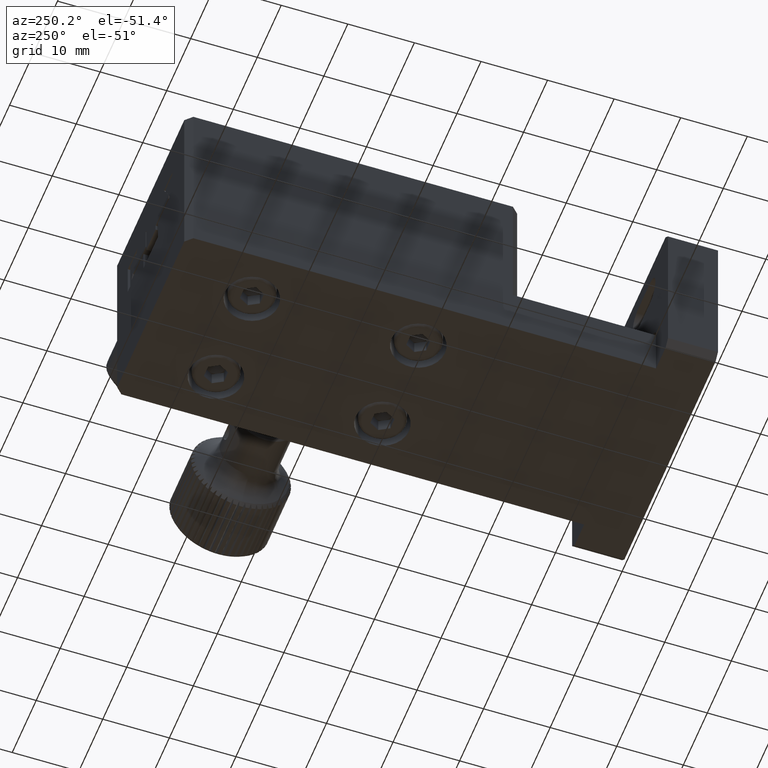
[diagram: clean part render]
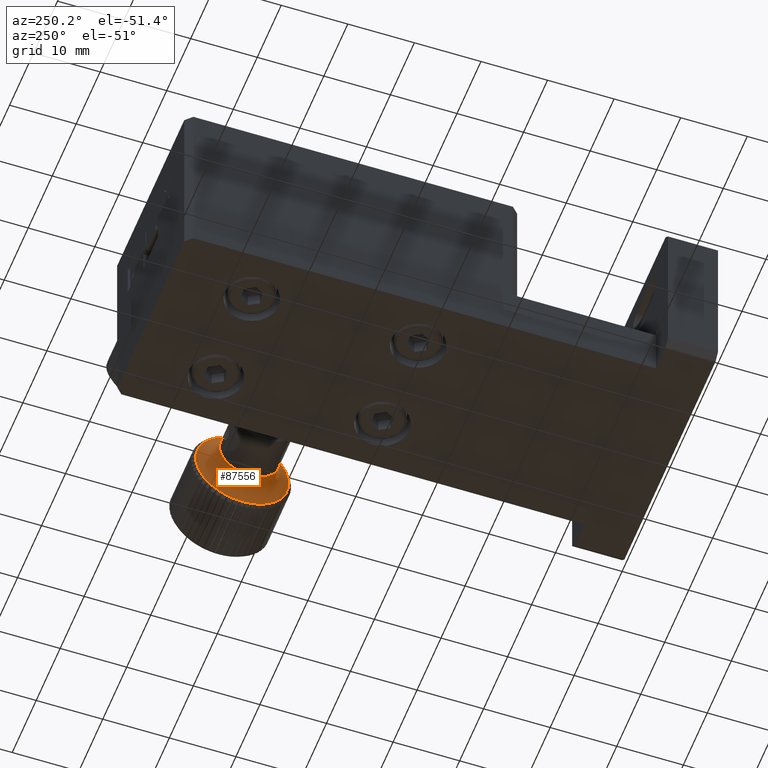
[diagram: same view with one face highlighted and labeled with its STEP entity id]
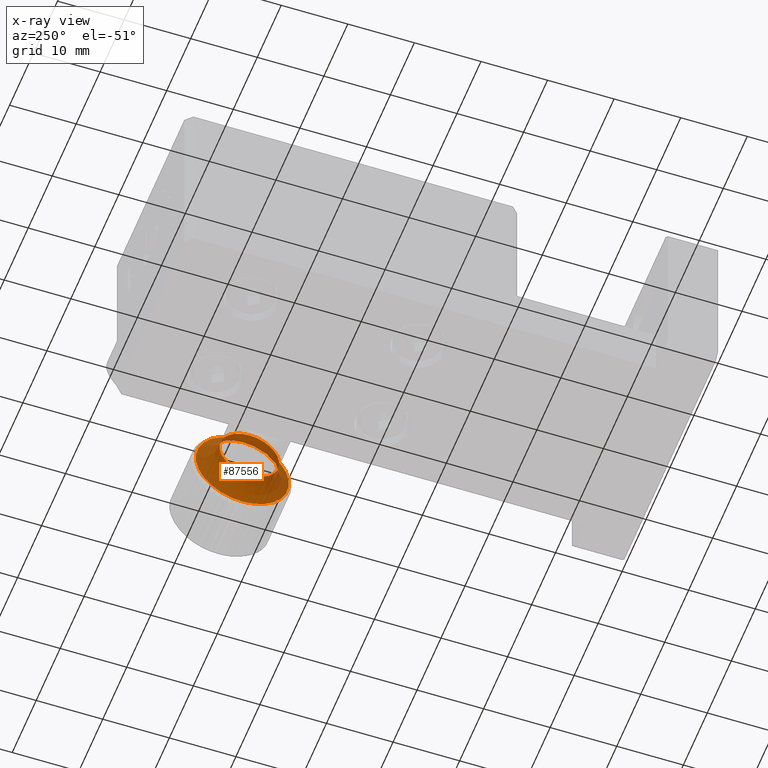
[diagram: x-ray of the same camera — body ghosted, the highlighted face saturated]
A machine part, auxiliary view. The second image highlights one B-rep face of the part: STEP entity #87556.
The next image is the same camera in x-ray: the body ghosted, the highlighted face saturated — about 6% of this face is hidden behind the body in this view.
In plain terms, the highlighted face is a freeform B-spline surface patch.
Its self-contained STEP definition (entity closure, byte-faithful):
#2912 = CARTESIAN_POINT ( 'NONE',  ( 28.94196010845153566, 52.76375284338143956, -7.084898028622584221 ) ) ;
#3521 = CARTESIAN_POINT ( 'NONE',  ( 28.94196010845183409, 52.74368245314225589, -11.58485327055951331 ) ) ;
#4289 = EDGE_CURVE ( 'NONE', #112916, #112916, #73698, .T. ) ;
#6648 = CARTESIAN_POINT ( 'NONE',  ( 30.47428243612356979, 52.78382323362059481, -2.584942786685552996 ) ) ;
#7242 = CARTESIAN_POINT ( 'NONE',  ( 31.90000000000220126, 66.79483420312739383, -0.1474088663462793380 ) ) ;
#16202 = CARTESIAN_POINT ( 'NONE',  ( 31.64461294539394842, 63.76634517588172457, -1.644806626783026582 ) ) ;
#16788 = CARTESIAN_POINT ( 'NONE',  ( 31.90000000000313207, 66.73239298904989880, -14.14726961905351565 ) ) ;
#17383 = CARTESIAN_POINT ( 'NONE',  ( 28.94196010845189448, 61.74359293701609630, -11.62499405103788241 ) ) ;
#26002 = EDGE_CURVE ( 'NONE', #86045, #86045, #99981, .T. ) ;
#26357 = FACE_OUTER_BOUND ( 'NONE', #99926, .T. ) ;
#26955 = CARTESIAN_POINT ( 'NONE',  ( 31.90000000000303615, 52.73253223634265652, -14.08482840497599931 ) ) ;
#27839 = AXIS2_PLACEMENT_3D ( 'NONE', #2912, #84261, #39397 ) ;
#28954 = ORIENTED_EDGE ( 'NONE', *, *, #26002, .F. ) ;
#35914 = CARTESIAN_POINT ( 'NONE',  ( 31.64461294539467673, 63.71738136435309485, -12.62291705351902671 ) ) ;
#36506 = CARTESIAN_POINT ( 'NONE',  ( 28.94196010845129408, 61.78373371749447074, -2.625083567164012255 ) ) ;
#36621 = ORIENTED_EDGE ( 'NONE', *, *, #4289, .F. ) ;
#39397 = DIRECTION ( 'NONE',  ( 6.630498619289128778E-14, -0.004460086719818938221, -0.9999900537637620435 ) ) ;
#39672 = DIRECTION ( 'NONE',  ( 1.000000000000000000, -6.581911557350823850E-15, 6.630657487406821572E-14 ) ) ;
#40177 = EDGE_LOOP ( 'NONE', ( #36621 ) ) ;
#40845 = DIRECTION ( 'NONE',  ( 6.641512736590708136E-14, -0.004460086719802541615, -0.9999900537637620435 ) ) ;
#44309 = CARTESIAN_POINT ( 'NONE',  ( 31.90000000000200941, 38.79511269771295190, -0.02252643819127507496 ) ) ;
#44882 = CARTESIAN_POINT ( 'NONE',  ( 30.47428243612351650, 43.78391274974672598, -2.544802006207224299 ) ) ;
#48415 = AXIS2_PLACEMENT_3D ( 'NONE', #103033, #39672, #40845 ) ;
#49762 =( BOUNDED_SURFACE ( )  B_SPLINE_SURFACE ( 3, 3, ( 
 ( #89169, #17383, #36506, #117782, #63413, #71231, #53856 ),
 ( #107072, #62225, #100446, #6648, #44882, #54432, #52095 ),
 ( #72997, #35914, #16202, #108247, #116021, #98703, #72413 ),
 ( #26955, #16788, #7242, #108841, #44309, #90917, #81947 ) ),
 .UNSPECIFIED., .F., .T., .T. ) 
 B_SPLINE_SURFACE_WITH_KNOTS ( ( 4, 4 ),
 ( 4, 3, 4 ),
 ( 0.000000000000000000, 1.000000000000000000 ),
 ( 0.000000000000000000, 0.5000000000000000000, 1.000000000000000000 ),
 .UNSPECIFIED. ) 
 GEOMETRIC_REPRESENTATION_ITEM ( )  RATIONAL_B_SPLINE_SURFACE ( (
 ( 1.000000000000000000, 0.3333333333333333148, 0.3333333333333333148, 1.000000000000000000, 0.3333333333333333148, 0.3333333333333333148, 1.000000000000000000),
 ( 0.8425084105501197129, 0.2808361368500398858, 0.2808361368500398858, 0.8425084105501197129, 0.2808361368500398858, 0.2808361368500398858, 0.8425084105501197129),
 ( 0.8425084105501197129, 0.2808361368500398858, 0.2808361368500398858, 0.8425084105501197129, 0.2808361368500398858, 0.2808361368500398858, 0.8425084105501197129),
 ( 1.000000000000000000, 0.3333333333333333148, 0.3333333333333333148, 1.000000000000000000, 0.3333333333333333148, 0.3333333333333333148, 1.000000000000000000) ) ) 
 REPRESENTATION_ITEM ( '' )  SURFACE ( )  );
#52095 = CARTESIAN_POINT ( 'NONE',  ( 30.47428243612417731, 52.74368245314224879, -11.58485327055941383 ) ) ;
#53856 = CARTESIAN_POINT ( 'NONE',  ( 28.94196010845183409, 52.74368245314225589, -11.58485327055951331 ) ) ;
#54432 = CARTESIAN_POINT ( 'NONE',  ( 30.47428243612410981, 43.74377196926838707, -11.54471249008105715 ) ) ;
#62225 = CARTESIAN_POINT ( 'NONE',  ( 30.47428243612423771, 61.74359293701611051, -11.62499405103777050 ) ) ;
#63413 = CARTESIAN_POINT ( 'NONE',  ( 28.94196010845116973, 43.78391274974675440, -2.544802006207299350 ) ) ;
#71231 = CARTESIAN_POINT ( 'NONE',  ( 28.94196010845176303, 43.74377196926838707, -11.54471249008114420 ) ) ;
#72413 = CARTESIAN_POINT ( 'NONE',  ( 31.64461294539459857, 52.73927093761710694, -12.57395324199040587 ) ) ;
#72997 = CARTESIAN_POINT ( 'NONE',  ( 31.64461294539459857, 52.73927093761710694, -12.57395324199040587 ) ) ;
#73698 = CIRCLE ( 'NONE', #27839, 4.500000000000000000 ) ;
#81947 = CARTESIAN_POINT ( 'NONE',  ( 31.90000000000303615, 52.73253223634265652, -14.08482840497599931 ) ) ;
#84261 = DIRECTION ( 'NONE',  ( -1.000000000000000000, 6.581911557350823850E-15, -6.630657487406821572E-14 ) ) ;
#86045 = VERTEX_POINT ( 'NONE', #114088 ) ;
#87556 = ADVANCED_FACE ( 'NONE', ( #26357, #98116 ), #49762, .F. ) ;
#89169 = CARTESIAN_POINT ( 'NONE',  ( 28.94196010845183409, 52.74368245314225589, -11.58485327055951331 ) ) ;
#90917 = CARTESIAN_POINT ( 'NONE',  ( 31.90000000000292601, 38.73267148363543555, -14.02238719089848296 ) ) ;
#98116 = FACE_OUTER_BOUND ( 'NONE', #40177, .T. ) ;
#98703 = CARTESIAN_POINT ( 'NONE',  ( 31.64461294539452396, 41.76116051088111192, -12.52498943046178326 ) ) ;
#99926 = EDGE_LOOP ( 'NONE', ( #28954 ) ) ;
#99981 = CIRCLE ( 'NONE', #48415, 7.000000000006545875 ) ;
#100446 = CARTESIAN_POINT ( 'NONE',  ( 30.47428243612363730, 61.78373371749445653, -2.625083567163882137 ) ) ;
#103033 = CARTESIAN_POINT ( 'NONE',  ( 31.90000000000690150, 52.76375284338142535, -7.084898028622388821 ) ) ;
#107072 = CARTESIAN_POINT ( 'NONE',  ( 30.47428243612417731, 52.74368245314224879, -11.58485327055941383 ) ) ;
#108247 = CARTESIAN_POINT ( 'NONE',  ( 31.64461294539387382, 52.78823474914572245, -1.595842815254405744 ) ) ;
#108841 = CARTESIAN_POINT ( 'NONE',  ( 31.90000000000210889, 52.79497345042016576, -0.08496765226877721344 ) ) ;
#112916 = VERTEX_POINT ( 'NONE', #3521 ) ;
#114088 = CARTESIAN_POINT ( 'NONE',  ( 31.90000000000736691, 52.73253223634277731, -14.08482840497526922 ) ) ;
#116021 = CARTESIAN_POINT ( 'NONE',  ( 31.64461294539379210, 41.81012432240972743, -1.546879003725784463 ) ) ;
#117782 = CARTESIAN_POINT ( 'NONE',  ( 28.94196010845123368, 52.78382323362061612, -2.584942786685655580 ) ) ;